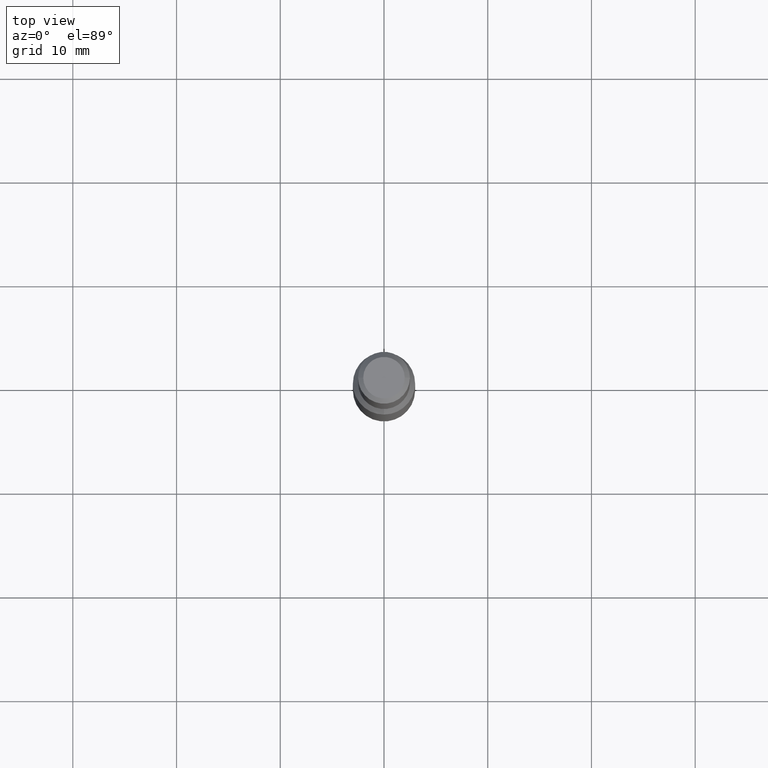
[diagram: clean part render]
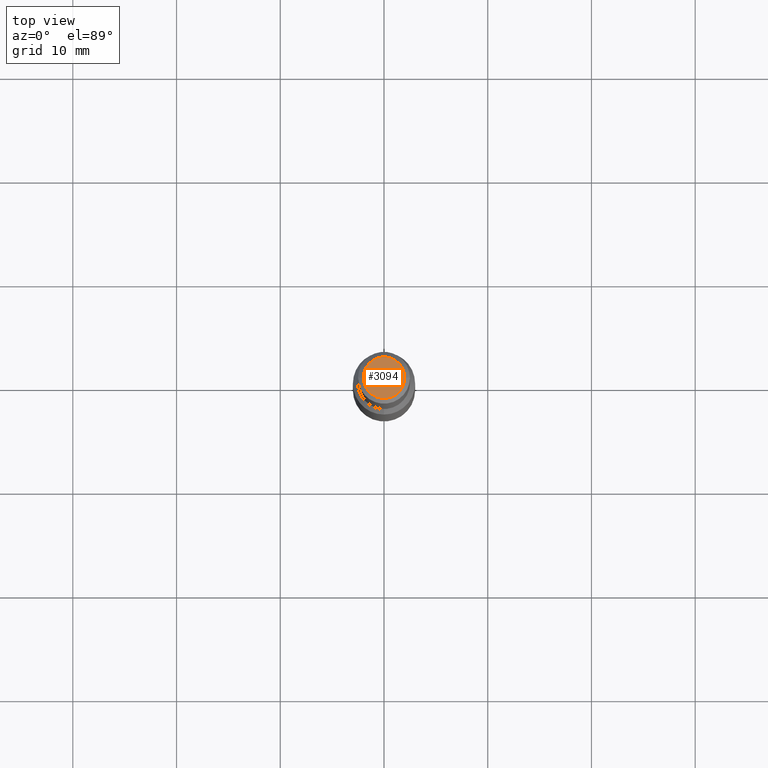
[diagram: same view with one face highlighted and labeled with its STEP entity id]
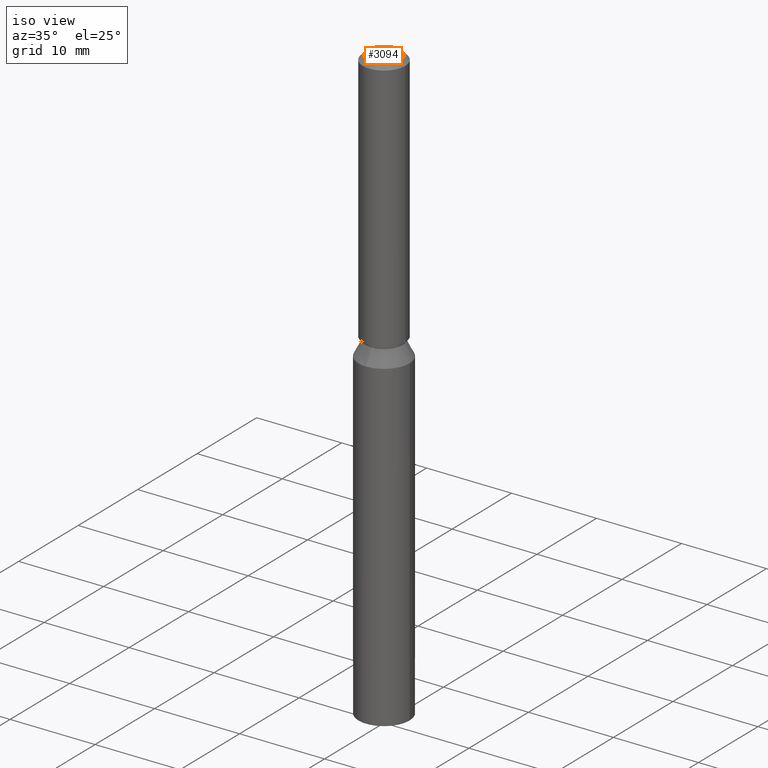
[diagram: same view with one face highlighted and labeled with its STEP entity id]
A machine part, top view. The second image highlights one B-rep face of the part: STEP entity #3094.
A second angle (iso view) of the same face is appended — the face is thin or edge-on in the first view.
In plain terms, the highlighted planar face has unit normal (0, 0, 1).
Its self-contained STEP definition (entity closure, byte-faithful):
#79 = CARTESIAN_POINT ( 'NONE',  ( 2.000000000000008900, 2.755455298081550200E-016, 70.00000000000000000 ) ) ;
#929 = CARTESIAN_POINT ( 'NONE',  ( 0.0000000000000000000, 0.0000000000000000000, 70.00000000000000000 ) ) ;
#1104 = VERTEX_POINT ( 'NONE', #79 ) ;
#1118 = EDGE_CURVE ( 'NONE', #1104, #11485, #13593, .T. ) ;
#2296 = DIRECTION ( 'NONE',  ( 0.0000000000000000000, 0.0000000000000000000, 1.000000000000000000 ) ) ;
#3094 = ADVANCED_FACE ( 'NONE', ( #3729 ), #3951, .T. ) ;
#3729 = FACE_OUTER_BOUND ( 'NONE', #6606, .T. ) ;
#3951 = PLANE ( 'NONE',  #10769 ) ;
#4142 = CARTESIAN_POINT ( 'NONE',  ( 0.0000000000000000000, 0.0000000000000000000, 70.00000000000000000 ) ) ;
#5238 = AXIS2_PLACEMENT_3D ( 'NONE', #929, #13839, #9594 ) ;
#5597 = DIRECTION ( 'NONE',  ( 1.000000000000000000, 0.0000000000000000000, 0.0000000000000000000 ) ) ;
#6606 = EDGE_LOOP ( 'NONE', ( #13470, #8956 ) ) ;
#6865 = DIRECTION ( 'NONE',  ( 1.000000000000000000, 0.0000000000000000000, -0.0000000000000000000 ) ) ;
#7699 = EDGE_CURVE ( 'NONE', #11485, #1104, #8753, .T. ) ;
#8753 = CIRCLE ( 'NONE', #5238, 2.000000000000008900 ) ;
#8956 = ORIENTED_EDGE ( 'NONE', *, *, #1118, .T. ) ;
#9594 = DIRECTION ( 'NONE',  ( 1.000000000000000000, 0.0000000000000000000, 0.0000000000000000000 ) ) ;
#10769 = AXIS2_PLACEMENT_3D ( 'NONE', #4142, #11099, #6865 ) ;
#11099 = DIRECTION ( 'NONE',  ( 0.0000000000000000000, 0.0000000000000000000, 1.000000000000000000 ) ) ;
#11471 = CARTESIAN_POINT ( 'NONE',  ( -2.000000000000008900, 0.0000000000000000000, 70.00000000000000000 ) ) ;
#11485 = VERTEX_POINT ( 'NONE', #11471 ) ;
#13470 = ORIENTED_EDGE ( 'NONE', *, *, #7699, .T. ) ;
#13593 = CIRCLE ( 'NONE', #13774, 2.000000000000008900 ) ;
#13774 = AXIS2_PLACEMENT_3D ( 'NONE', #14070, #2296, #5597 ) ;
#13839 = DIRECTION ( 'NONE',  ( 0.0000000000000000000, 0.0000000000000000000, 1.000000000000000000 ) ) ;
#14070 = CARTESIAN_POINT ( 'NONE',  ( 0.0000000000000000000, 0.0000000000000000000, 70.00000000000000000 ) ) ;